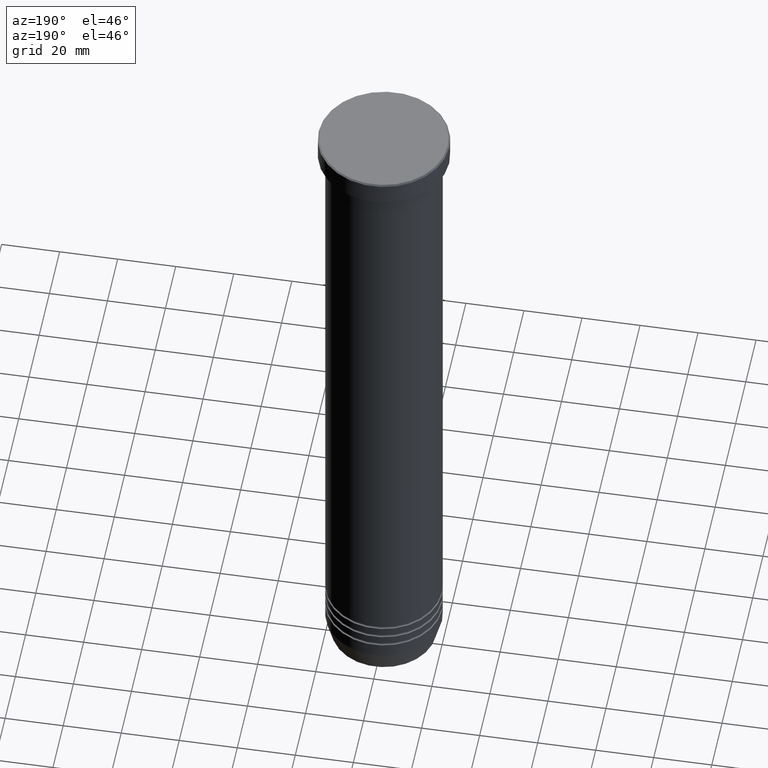
[diagram: clean part render]
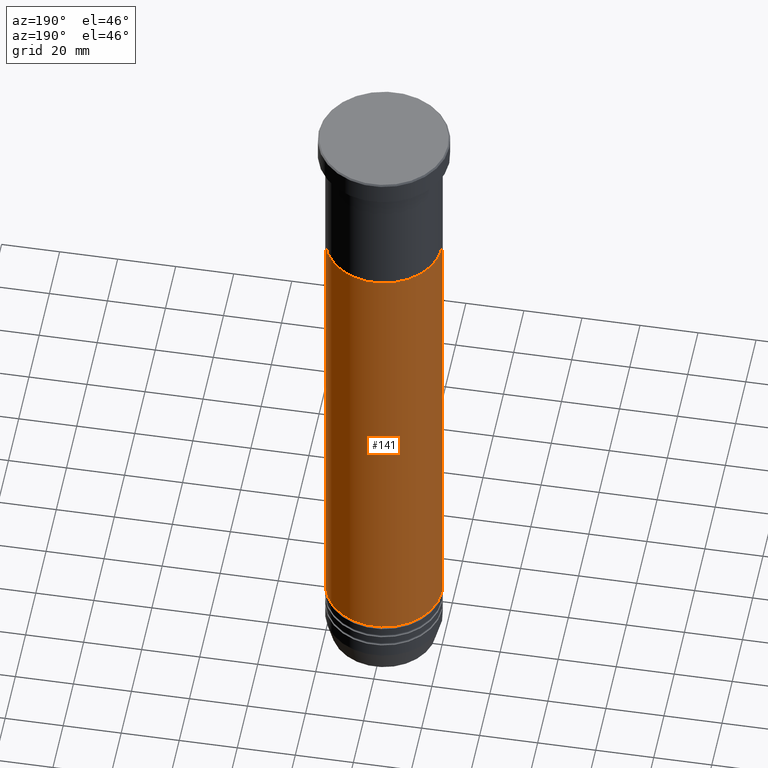
[diagram: same view with one face highlighted and labeled with its STEP entity id]
A machine part, auxiliary view. The second image highlights one B-rep face of the part: STEP entity #141.
In plain terms, the highlighted cylindrical surface (partial cylindrical patch) has radius 20 mm, axis along (-0, -0, 1).
Its self-contained STEP definition (entity closure, byte-faithful):
#18 = CARTESIAN_POINT ( 'NONE',  ( -20.00000000000000000, 2.449293598294706513E-15, -50.00000000000000000 ) ) ;
#27 = AXIS2_PLACEMENT_3D ( 'NONE', #811, #479, #1050 ) ;
#59 = ORIENTED_EDGE ( 'NONE', *, *, #95, .T. ) ;
#95 = EDGE_CURVE ( 'NONE', #393, #524, #399, .T. ) ;
#141 = ADVANCED_FACE ( 'NONE', ( #659 ), #559, .T. ) ;
#171 = DIRECTION ( 'NONE',  ( -0.000000000000000000, -0.000000000000000000, 1.000000000000000000 ) ) ;
#208 = AXIS2_PLACEMENT_3D ( 'NONE', #482, #229, #975 ) ;
#216 = CARTESIAN_POINT ( 'NONE',  ( -19.99999999999999289, 2.449293598294705724E-15, -218.0000000000000284 ) ) ;
#229 = DIRECTION ( 'NONE',  ( -0.000000000000000000, -0.000000000000000000, 1.000000000000000000 ) ) ;
#314 = DIRECTION ( 'NONE',  ( -0.000000000000000000, -0.000000000000000000, 1.000000000000000000 ) ) ;
#356 = VECTOR ( 'NONE', #314, 1000.000000000000000 ) ;
#362 = ORIENTED_EDGE ( 'NONE', *, *, #448, .F. ) ;
#372 = CIRCLE ( 'NONE', #595, 19.99999999999999289 ) ;
#393 = VERTEX_POINT ( 'NONE', #216 ) ;
#399 = LINE ( 'NONE', #1036, #356 ) ;
#403 = CARTESIAN_POINT ( 'NONE',  ( 19.99999999999999645, 0.000000000000000000, 0.000000000000000000 ) ) ;
#409 = CIRCLE ( 'NONE', #27, 20.00000000000000000 ) ;
#426 = ORIENTED_EDGE ( 'NONE', *, *, #848, .F. ) ;
#427 = VERTEX_POINT ( 'NONE', #550 ) ;
#448 = EDGE_CURVE ( 'NONE', #797, #427, #1035, .T. ) ;
#479 = DIRECTION ( 'NONE',  ( -0.000000000000000000, -0.000000000000000000, 1.000000000000000000 ) ) ;
#482 = CARTESIAN_POINT ( 'NONE',  ( 0.000000000000000000, 0.000000000000000000, 0.000000000000000000 ) ) ;
#524 = VERTEX_POINT ( 'NONE', #18 ) ;
#550 = CARTESIAN_POINT ( 'NONE',  ( 20.00000000000000000, 0.000000000000000000, -50.00000000000000000 ) ) ;
#559 = CYLINDRICAL_SURFACE ( 'NONE', #208, 19.99999999999999645 ) ;
#563 = DIRECTION ( 'NONE',  ( -0.000000000000000000, -0.000000000000000000, 1.000000000000000000 ) ) ;
#595 = AXIS2_PLACEMENT_3D ( 'NONE', #1057, #171, #979 ) ;
#659 = FACE_OUTER_BOUND ( 'NONE', #860, .T. ) ;
#797 = VERTEX_POINT ( 'NONE', #1046 ) ;
#811 = CARTESIAN_POINT ( 'NONE',  ( 0.000000000000000000, 0.000000000000000000, -50.00000000000000000 ) ) ;
#848 = EDGE_CURVE ( 'NONE', #427, #524, #409, .T. ) ;
#860 = EDGE_LOOP ( 'NONE', ( #959, #59, #426, #362 ) ) ;
#872 = EDGE_CURVE ( 'NONE', #797, #393, #372, .T. ) ;
#910 = VECTOR ( 'NONE', #563, 1000.000000000000000 ) ;
#959 = ORIENTED_EDGE ( 'NONE', *, *, #872, .T. ) ;
#975 = DIRECTION ( 'NONE',  ( 1.000000000000000000, 0.000000000000000000, 0.000000000000000000 ) ) ;
#979 = DIRECTION ( 'NONE',  ( 1.000000000000000000, 0.000000000000000000, 0.000000000000000000 ) ) ;
#1035 = LINE ( 'NONE', #403, #910 ) ;
#1036 = CARTESIAN_POINT ( 'NONE',  ( -19.99999999999999645, 2.449293598294706119E-15, 0.000000000000000000 ) ) ;
#1046 = CARTESIAN_POINT ( 'NONE',  ( 19.99999999999999289, 0.000000000000000000, -218.0000000000000284 ) ) ;
#1050 = DIRECTION ( 'NONE',  ( 1.000000000000000000, 0.000000000000000000, 0.000000000000000000 ) ) ;
#1057 = CARTESIAN_POINT ( 'NONE',  ( 0.000000000000000000, 0.000000000000000000, -218.0000000000000284 ) ) ;